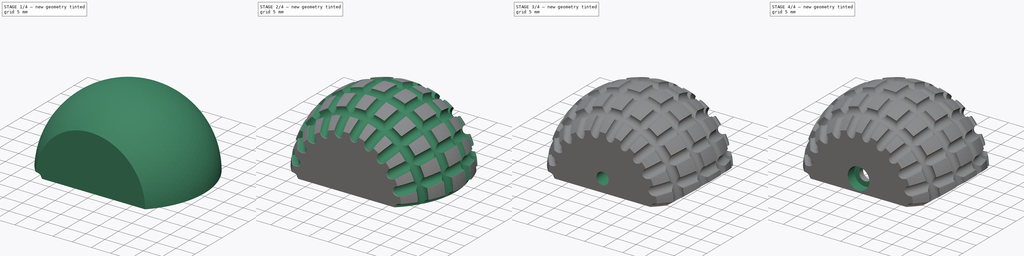
[diagram: build sequence overview — one tinted view per stage of 4, left to right]
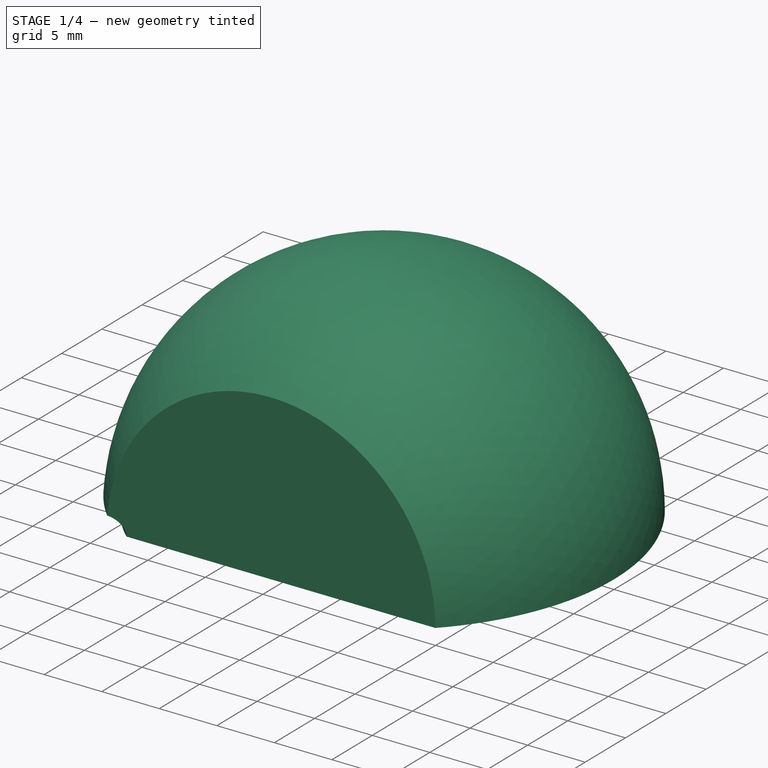
[diagram: stage 1 of 4 — iso view after this stage's code; geometry added in this stage tinted green]
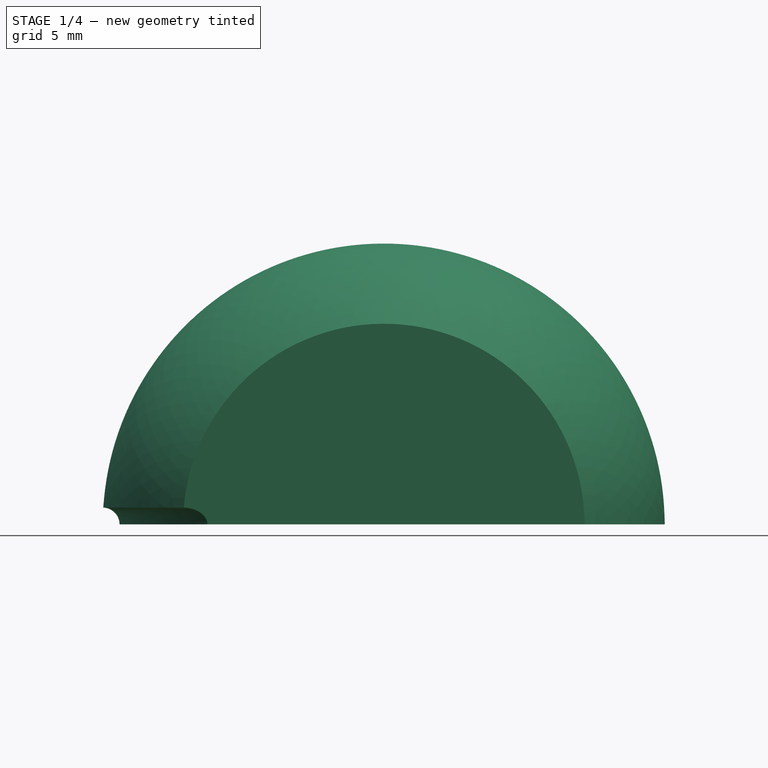
[diagram: stage 1 of 4 — front view after this stage's code; geometry added in this stage tinted green]
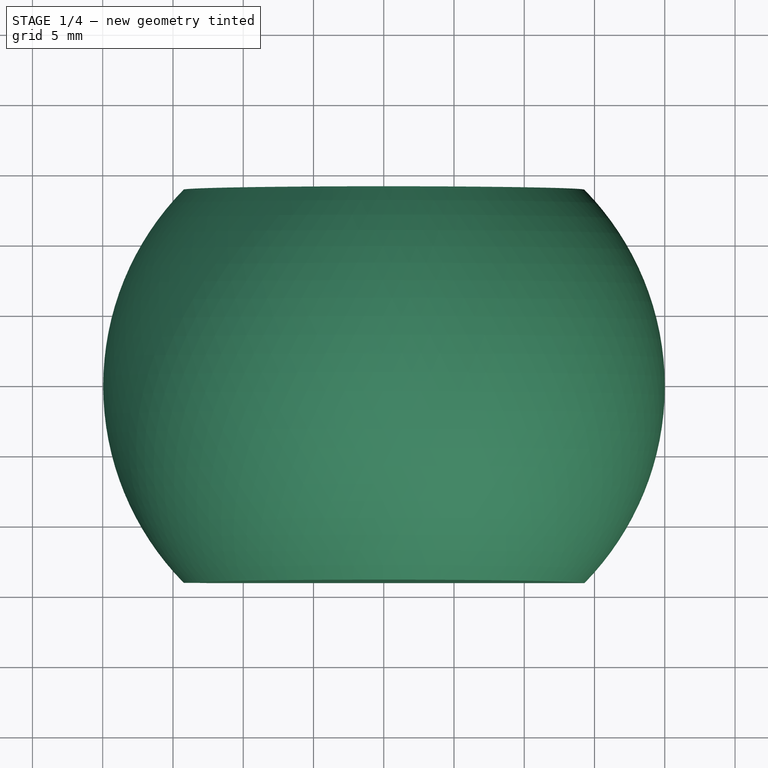
[diagram: stage 1 of 4 — top view after this stage's code; geometry added in this stage tinted green]
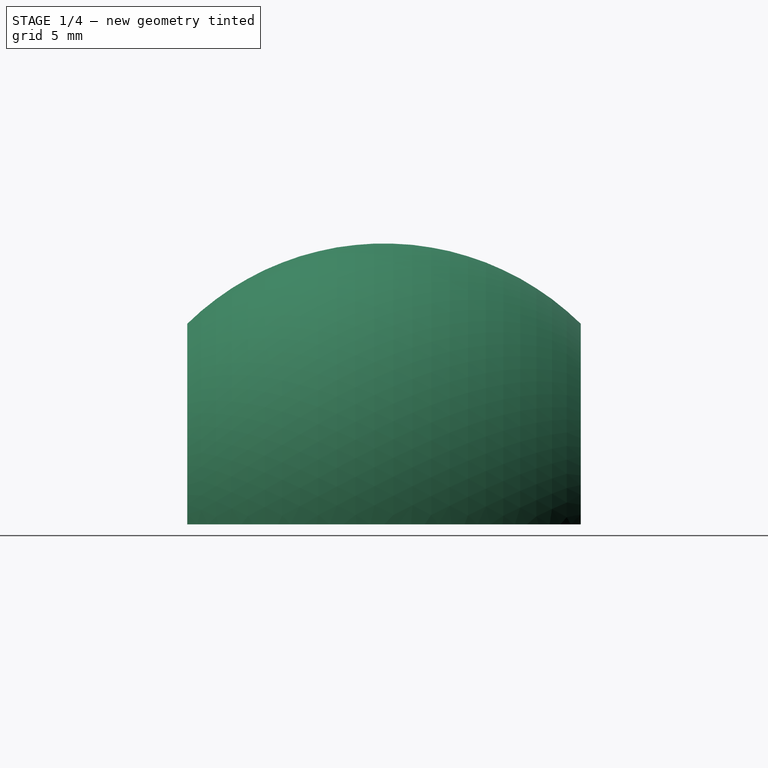
[diagram: stage 1 of 4 — right view after this stage's code; geometry added in this stage tinted green]
FCSTD DOCUMENT  (FreeCAD 1.0R38806 (Git))
Label: Foot_Tip
License: All rights reserved
LicenseURL: https://en.wikipedia.org/wiki/All_rights_reserved
objects: Sketcher::SketchObject×8, PartDesign::Pocket×4, PartDesign::Groove×3, PartDesign::Revolution×1, PartDesign::PolarPattern×1, PartDesign::Body×1
note: 43 computed .brp shape members not serialized (recipe doc carries the construction recipe); baked Part::Feature solids carry a one-line shape summary decoded from their .brp

FEATURE [Sketcher::SketchObject] Sketch  label="sk_base"
  ArcFitTolerance = 1e-06
  AttachmentSupport = -> [XY_Plane]
  FullyConstrained = true
  MakeInternals = false
  MapMode = 5
  sketch-geometry (4):
    g0: LineSegment StartX=0 StartY=-14 StartZ=0 EndX=0 EndY=14 EndZ=0
    g1: LineSegment StartX=0 StartY=14 StartZ=0 EndX=-14.2829 EndY=14 EndZ=0
    g2: ArcOfCircle CenterX=0 CenterY=0 CenterZ=0 NormalX=0 NormalY=0 NormalZ=1 AngleXU=0 Radius=20 StartAngle=2.3662 EndAngle=3.91699
    g3: LineSegment StartX=-14.2829 StartY=-14 StartZ=0 EndX=0 EndY=-14 EndZ=0
  constraints (11):
    c: PointOnObject(g0,g-2)
    c: Coincident(g0,g1)
    c: Horizontal(g1)
    c: Coincident(g3,g0)
    c: Coincident(g2,g-1)
    c: Coincident(g2,g3)
    c: Coincident(g2,g1)
    c: Horizontal(g3)
    c: Radius(g2) = 20  'rad_outer'
    c: Symmetric(g0,g0,g-1)
    c: DistanceY(g0,g0) = 28  'width'
FEATURE [PartDesign::Revolution] Revolution  label="revolution_base"
  Angle = 180
  Angle2 = 60
  Axis = (0,1,0)
  Base = (0,0,0)
  Profile = -> Sketch
  ReferenceAxis = -> Sketch [V_Axis]
  Refine = true
  Suppressed = false
  Type = 0
FEATURE [Sketcher::SketchObject] Sketch001  label="sk_transversal"
  ArcFitTolerance = 1e-06
  AttachmentSupport = -> [XZ_Plane]
  FullyConstrained = true
  MakeInternals = false
  MapMode = 5
  Placement = pos=(0,0,0) rot=(1,0,0;1.5708rad)
  expr: .Constraints.help_rad = <<sk_base>>.Constraints.rad_outer
  sketch-geometry (2):
    g0: Circle CenterX=-20 CenterY=0 CenterZ=0 NormalX=0 NormalY=0 NormalZ=1 AngleXU=0 Radius=1.2
    g1: Circle [constr] CenterX=0 CenterY=0 CenterZ=0 NormalX=0 NormalY=0 NormalZ=1 AngleXU=0 Radius=20
  constraints (5):
    c: PointOnObject(g0,g-1)
    c: Coincident(g1,g-1)
    c: Radius(g1) = 20  'help_rad'
    c: PointOnObject(g0,g1)
    c: Radius(g0) = 1.2  'rad_cutout'
FEATURE [PartDesign::Groove] Groove  label="groove_transversal"
  Angle = 120
  Angle2 = 60
  Axis = (0,2e-16,1)
  Base = (0,0,0)
  BaseFeature = -> Revolution
  Midplane = true
  Profile = -> Sketch001
  ReferenceAxis = -> Sketch001 [V_Axis]
  Refine = true
  Suppressed = false
  Type = 0
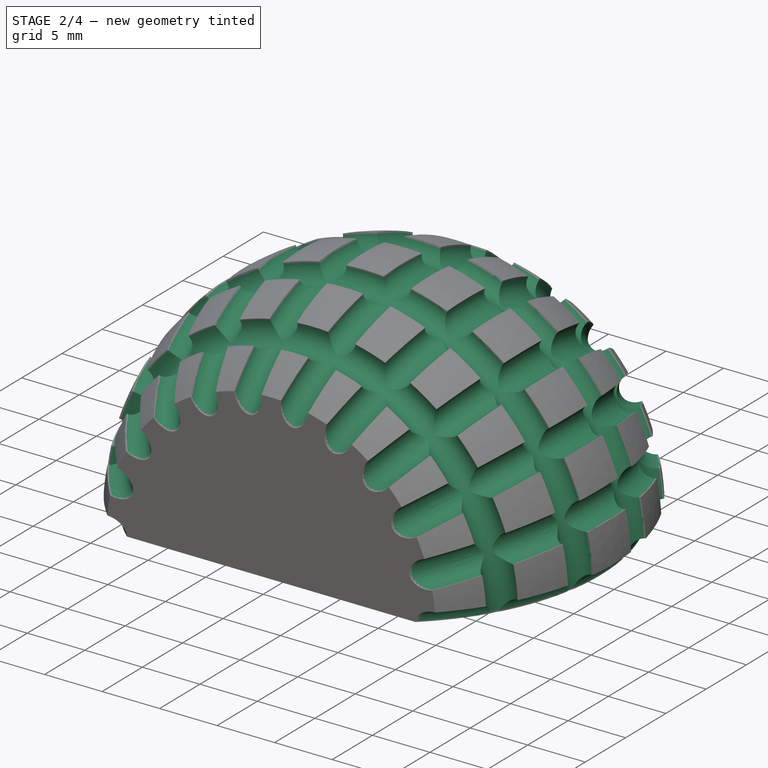
[diagram: stage 2 of 4 — iso view after this stage's code; geometry added in this stage tinted green]
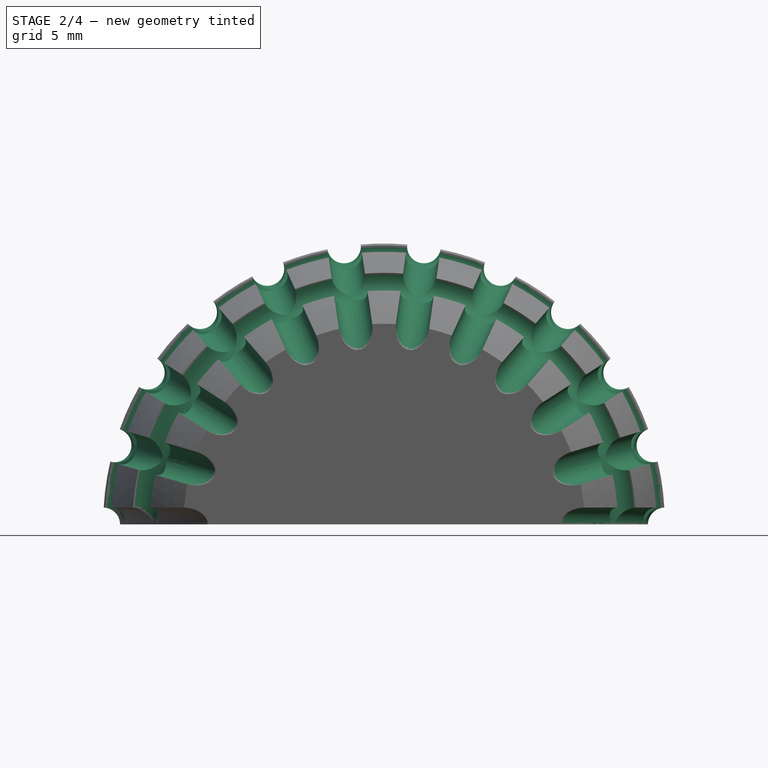
[diagram: stage 2 of 4 — front view after this stage's code; geometry added in this stage tinted green]
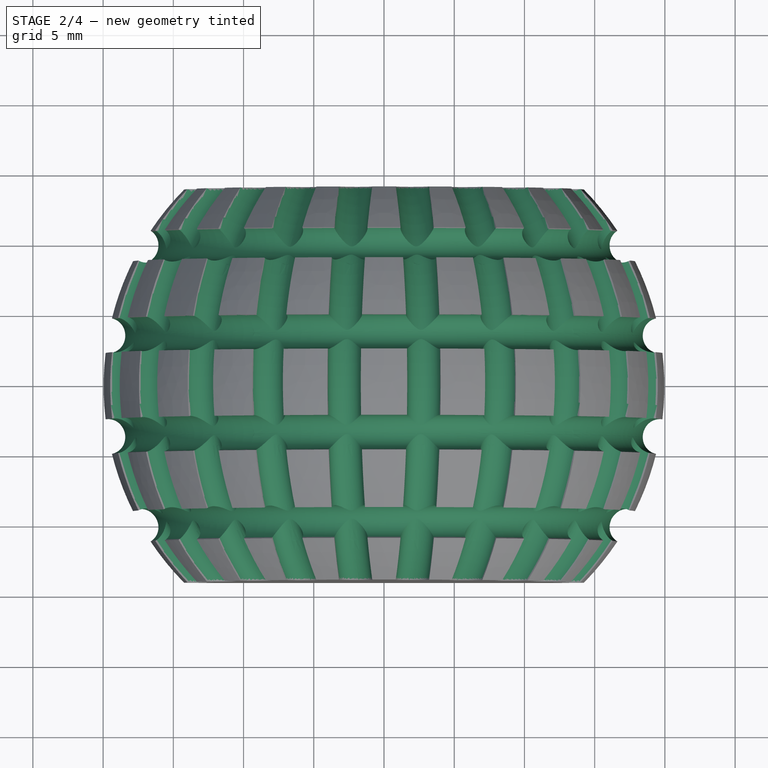
[diagram: stage 2 of 4 — top view after this stage's code; geometry added in this stage tinted green]
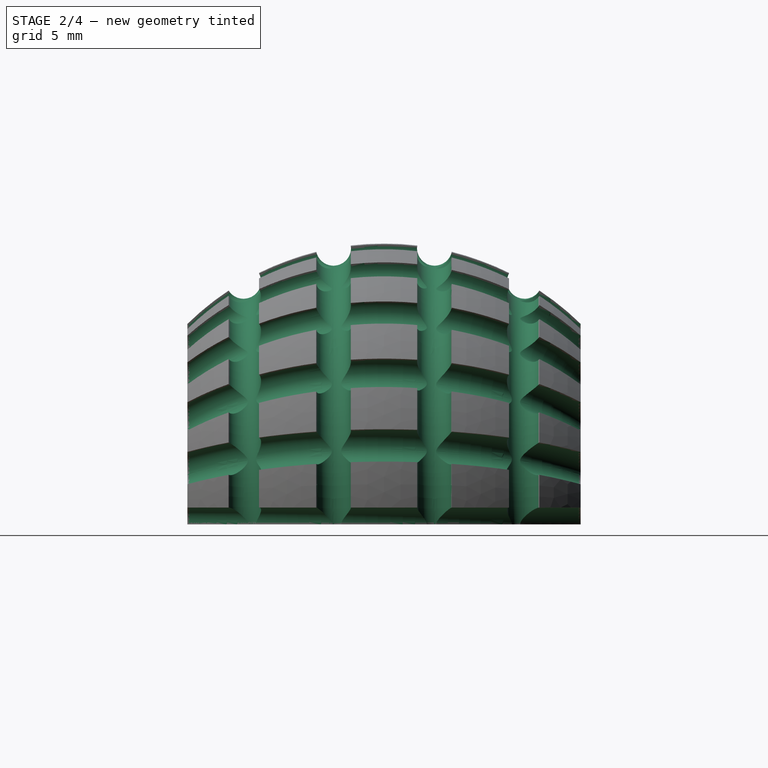
[diagram: stage 2 of 4 — right view after this stage's code; geometry added in this stage tinted green]
FEATURE [PartDesign::PolarPattern] PolarPattern  label="polar_transversal"
  Angle = 180
  Axis = -> Y_Axis
  BaseFeature = -> Groove
  Mode = 0
  Occurrences = 12
  Offset = 120
  Originals = -> [Groove]
  Refine = true
  Suppressed = false
  TransformMode = 0
FEATURE [Sketcher::SketchObject] Sketch002  label="sk_longitudinal"
  ArcFitTolerance = 1e-06
  AttachmentSupport = -> [XY_Plane]
  FullyConstrained = true
  MakeInternals = false
  MapMode = 5
  expr: .Constraints.help_rad = <<sk_base>>.Constraints.rad_outer
  sketch-geometry (5):
    g0: Circle [constr] CenterX=0 CenterY=0 CenterZ=0 NormalX=0 NormalY=0 NormalZ=1 AngleXU=0 Radius=20
    g1: Circle CenterX=-19.6733 CenterY=3.6 CenterZ=0 NormalX=0 NormalY=0 NormalZ=1 AngleXU=0 Radius=1.25
    g2: Circle CenterX=-19.6733 CenterY=-3.6 CenterZ=0 NormalX=0 NormalY=0 NormalZ=1 AngleXU=0 Radius=1.25
    g3: Circle CenterX=-17.3205 CenterY=10 CenterZ=0 NormalX=0 NormalY=0 NormalZ=1 AngleXU=0 Radius=1.25
    g4: Circle CenterX=-17.3205 CenterY=-10 CenterZ=0 NormalX=0 NormalY=0 NormalZ=1 AngleXU=0 Radius=1.25
  constraints (12):
    c: Coincident(g0,g-1)
    c: Radius(g0) = 20  'help_rad'
    c: Equal(g2,g1)
    c: Equal(g2,g4)
    c: Equal(g2,g3)
    c: Radius(g2) = 1.25  'rad_cutout'
    c: Distance(g1,g-1) = 3.6  'pos_inner'
    c: DistanceY(g-1,g3) = 10  'pos_outer'
    c: PointOnObject(g2,g0)
    c: PointOnObject(g4,g0)
    c: Symmetric(g2,g1,g-1)
    c: Symmetric(g4,g3,g-1)
FEATURE [PartDesign::Groove] Groove001  label="groove_longitudinal"
  Angle = 180
  Angle2 = 60
  Axis = (0,1,0)
  Base = (0,0,0)
  BaseFeature = -> PolarPattern
  Profile = -> Sketch002
  ReferenceAxis = -> Sketch002 [V_Axis]
  Refine = true
  Suppressed = false
  Type = 0
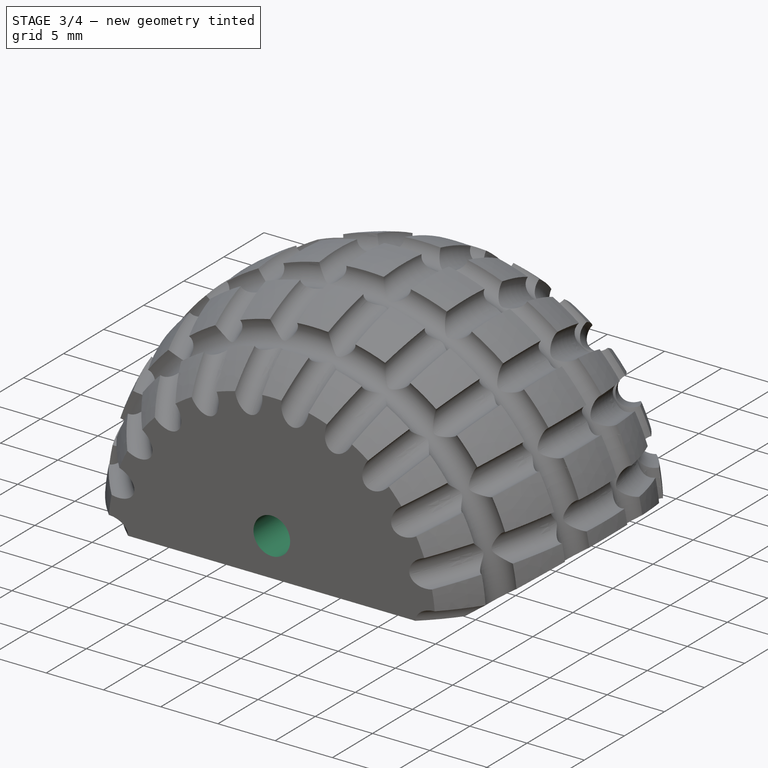
[diagram: stage 3 of 4 — iso view after this stage's code; geometry added in this stage tinted green]
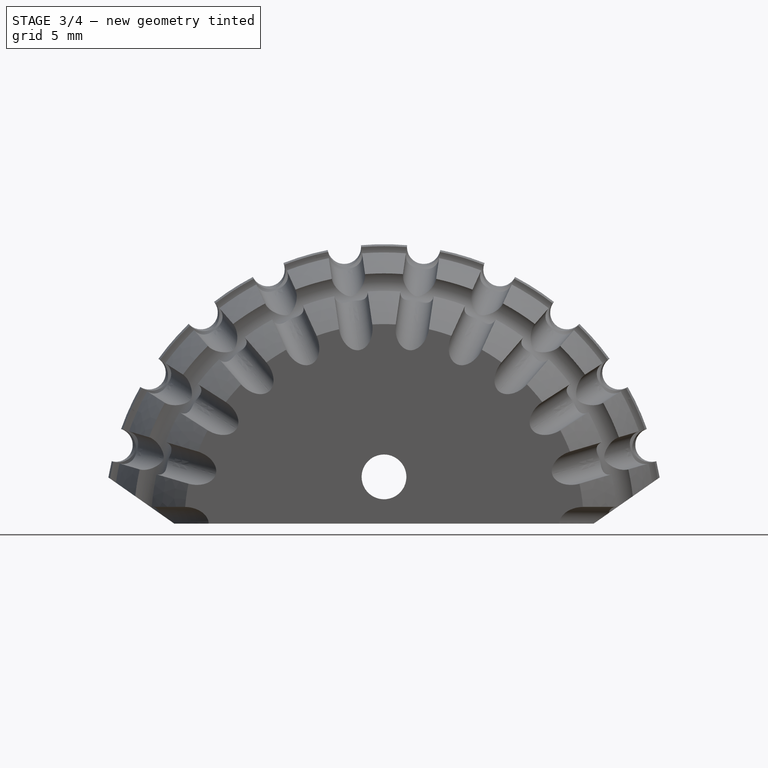
[diagram: stage 3 of 4 — front view after this stage's code; geometry added in this stage tinted green]
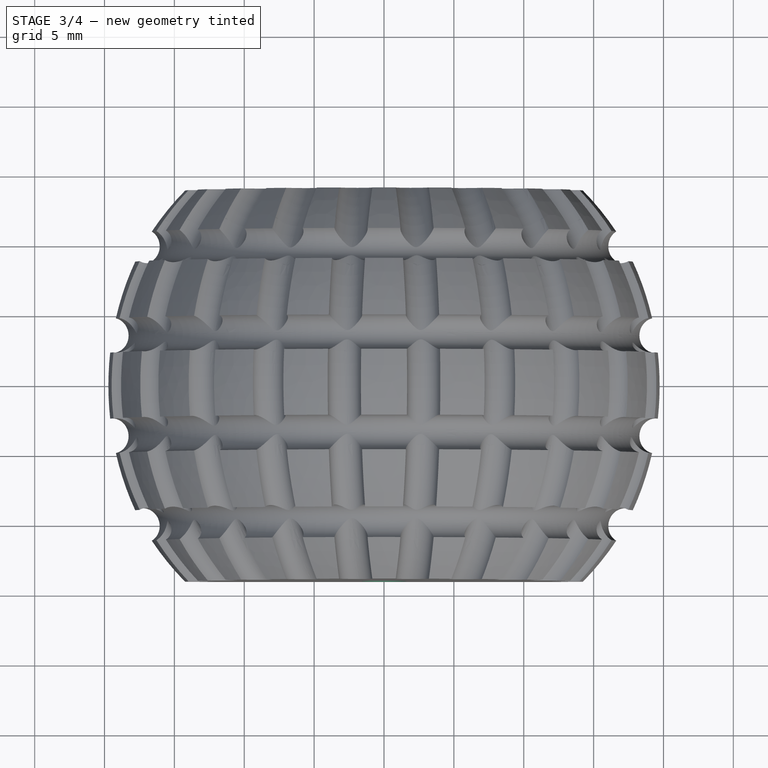
[diagram: stage 3 of 4 — top view after this stage's code; geometry added in this stage tinted green]
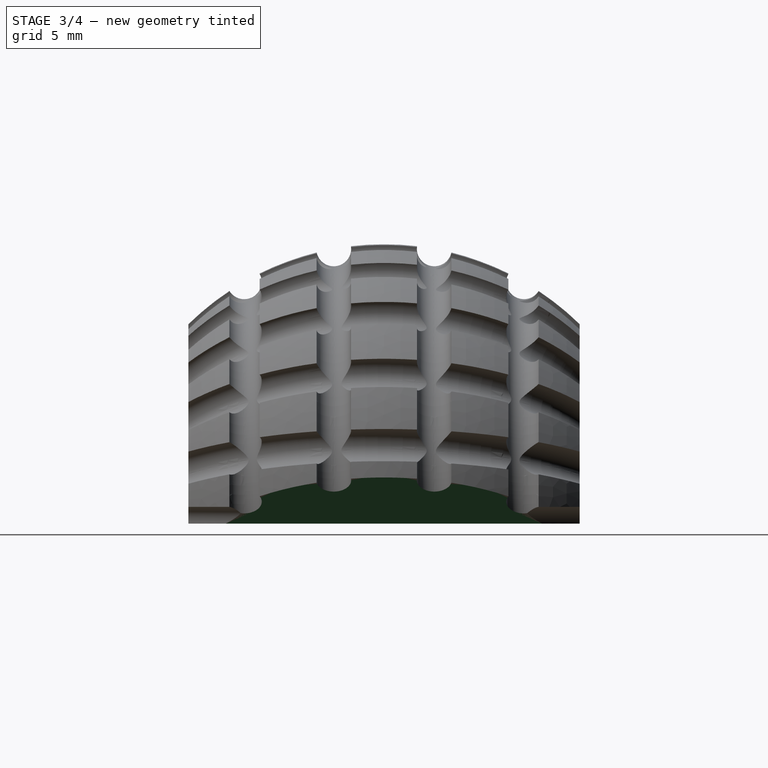
[diagram: stage 3 of 4 — right view after this stage's code; geometry added in this stage tinted green]
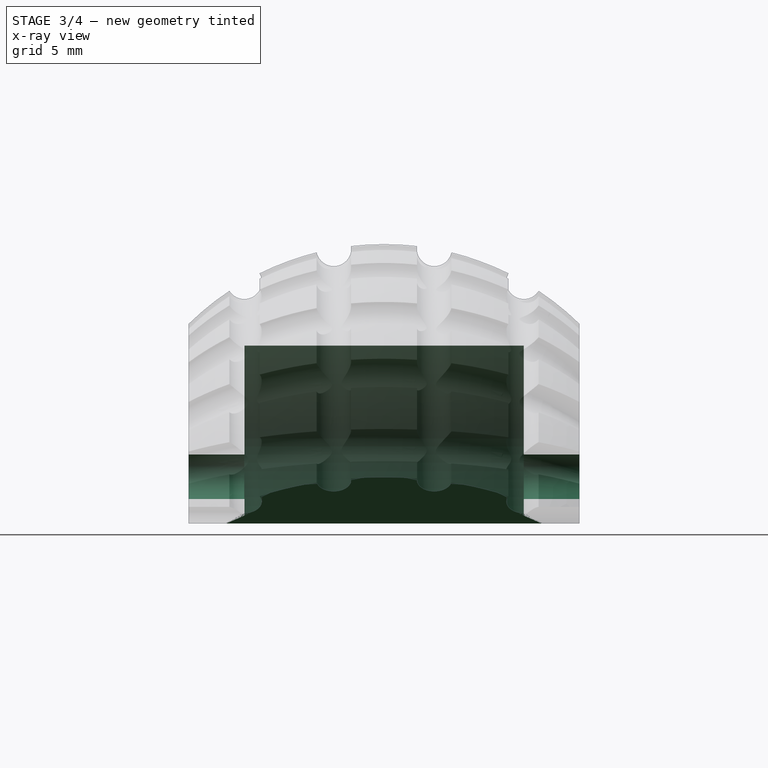
[diagram: stage 3 of 4 — x-ray composite at the right view; earlier geometry ghosted, this stage's added geometry solid]
FEATURE [Sketcher::SketchObject] Sketch003  label="sk_cutout"
  ArcFitTolerance = 1e-06
  AttachmentSupport = -> [XY_Plane]
  FullyConstrained = true
  MakeInternals = false
  MapMode = 5
  sketch-geometry (4):
    g0: LineSegment StartX=0 StartY=10 StartZ=0 EndX=-12.75 EndY=10 EndZ=0
    g1: LineSegment StartX=-12.75 StartY=10 StartZ=0 EndX=-12.75 EndY=-10 EndZ=0
    g2: LineSegment StartX=-12.75 StartY=-10 StartZ=0 EndX=0 EndY=-10 EndZ=0
    g3: LineSegment StartX=0 StartY=-10 StartZ=0 EndX=0 EndY=10 EndZ=0
  constraints (11):
    c: Coincident(g0,g1)
    c: Coincident(g1,g2)
    c: Coincident(g2,g3)
    c: Coincident(g3,g0)
    c: Horizontal(g0)
    c: Horizontal(g2)
    c: Vertical(g1)
    c: PointOnObject(g0,g-2)
    c: Symmetric(g0,g2,g-1)
    c: DistanceY(g3,g3) = 20  'width'
    c: DistanceX(g2,g2) = 12.75  'rad'
FEATURE [PartDesign::Groove] Groove002  label="groove_cutout"
  Angle = 180
  Angle2 = 60
  Axis = (0,1,0)
  Base = (0,0,0)
  BaseFeature = -> Groove001
  Profile = -> Sketch003
  ReferenceAxis = -> Sketch003 [V_Axis]
  Refine = true
  Suppressed = false
  Type = 0
FEATURE [Sketcher::SketchObject] Sketch004  label="sk_slanted-edge"
  ArcFitTolerance = 1e-06
  AttachmentSupport = -> [XZ_Plane]
  FullyConstrained = true
  MakeInternals = false
  MapMode = 5
  Placement = pos=(0,0,0) rot=(1,0,0;1.5708rad)
  sketch-geometry (6):
    g0: LineSegment StartX=-21 StartY=0 StartZ=0 EndX=-21 EndY=4.20125 EndZ=0
    g1: LineSegment StartX=-21 StartY=4.20125 StartZ=0 EndX=-15 EndY=0 EndZ=0
    g2: LineSegment StartX=-15 StartY=0 StartZ=0 EndX=-21 EndY=0 EndZ=0
    g3: LineSegment StartX=15 StartY=0 StartZ=0 EndX=21 EndY=4.20125 EndZ=0
    g4: LineSegment StartX=21 StartY=4.20125 StartZ=0 EndX=21 EndY=0 EndZ=0
    g5: LineSegment StartX=21 StartY=0 StartZ=0 EndX=15 EndY=0 EndZ=0
  constraints (16):
    c: PointOnObject(g0,g-1)
    c: Vertical(g0)
    c: Coincident(g0,g1)
    c: PointOnObject(g1,g-1)
    c: Coincident(g1,g2)
    c: Coincident(g2,g0)
    c: Coincident(g3,g4)
    c: Vertical(g4)
    c: Coincident(g4,g5)
    c: Coincident(g5,g3)
    c: Symmetric(g3,g1,g-2)
    c: Distance(g1,g-2) = 15  'rad'
    c: Angle(g1,g2) = 0.610865  'angle'
    c: DistanceX(g2,g2) = 6  'width'
    c: Symmetric(g3,g0,g-2)
    c: PointOnObject(g4,g-1)
FEATURE [PartDesign::Pocket] Pocket  label="pocket_slanted-edge"
  BaseFeature = -> Groove002
  Direction = (0,1,-2e-16)
  Length = 5
  Length2 = 5
  Midplane = true
  Profile = -> Sketch004
  ReferenceAxis = -> Sketch004 [N_Axis]
  Refine = true
  Suppressed = false
  Type = 1
FEATURE [Sketcher::SketchObject] Sketch005  label="sk_screwhole"
  ArcFitTolerance = 1e-06
  AttachmentSupport = -> [XZ_Plane]
  FullyConstrained = true
  MakeInternals = false
  MapMode = 5
  Placement = pos=(0,0,0) rot=(1,0,0;1.5708rad)
  sketch-geometry (8):
    g0: LineSegment [constr] StartX=2.9 StartY=5.02295 StartZ=0 EndX=0 EndY=6.69726 EndZ=0
    g1: LineSegment [constr] StartX=0 StartY=6.69726 StartZ=0 EndX=-2.9 EndY=5.02295 EndZ=0
    g2: LineSegment [constr] StartX=-2.9 StartY=5.02295 StartZ=0 EndX=-2.9 EndY=1.67432 EndZ=0
    g3: LineSegment [constr] StartX=-2.9 StartY=1.67432 StartZ=0 EndX=0 EndY=0 EndZ=0
    g4: LineSegment [constr] StartX=0 StartY=0 StartZ=0 EndX=2.9 EndY=1.67432 EndZ=0
    g5: LineSegment [constr] StartX=2.9 StartY=1.67432 StartZ=0 EndX=2.9 EndY=5.02295 EndZ=0
    g6: Circle [constr] CenterX=0 CenterY=3.34863 CenterZ=0 NormalX=0 NormalY=0 NormalZ=1 AngleXU=0 Radius=3.34863
    g7: Circle CenterX=0 CenterY=3.34863 CenterZ=0 NormalX=0 NormalY=0 NormalZ=1 AngleXU=0 Radius=1.6
  constraints (18):
    c: Coincident(g0,g1)
    c: Coincident(g1,g2)
    c: Coincident(g2,g3)
    c: Coincident(g3,g4)
    c: Coincident(g4,g5)
    c: Coincident(g5,g0)
    c: Equal(g0, g1-g5) x5
    c: PointOnObject(g0,g6)
    c: PointOnObject(g1,g6)
    c: PointOnObject(g2,g6)
    c: PointOnObject(g3,g6)
    c: PointOnObject(g4,g6)
    c: PointOnObject(g5,g6)
    c: PointOnObject(g6,g-2)
    c: Coincident(g3,g-1)
    c: Distance(g1,g0) = 5.8  'm2_width'
    c: Coincident(g7,g6)
    c: Radius(g7) = 1.6  'rad'
FEATURE [PartDesign::Pocket] Pocket001  label="pocket_screwhole"
  BaseFeature = -> Pocket
  Direction = (0,1,-2e-16)
  Length = 5
  Length2 = 5
  Midplane = true
  Profile = -> Sketch005
  ReferenceAxis = -> Sketch005 [N_Axis]
  Refine = true
  Suppressed = false
  Type = 1
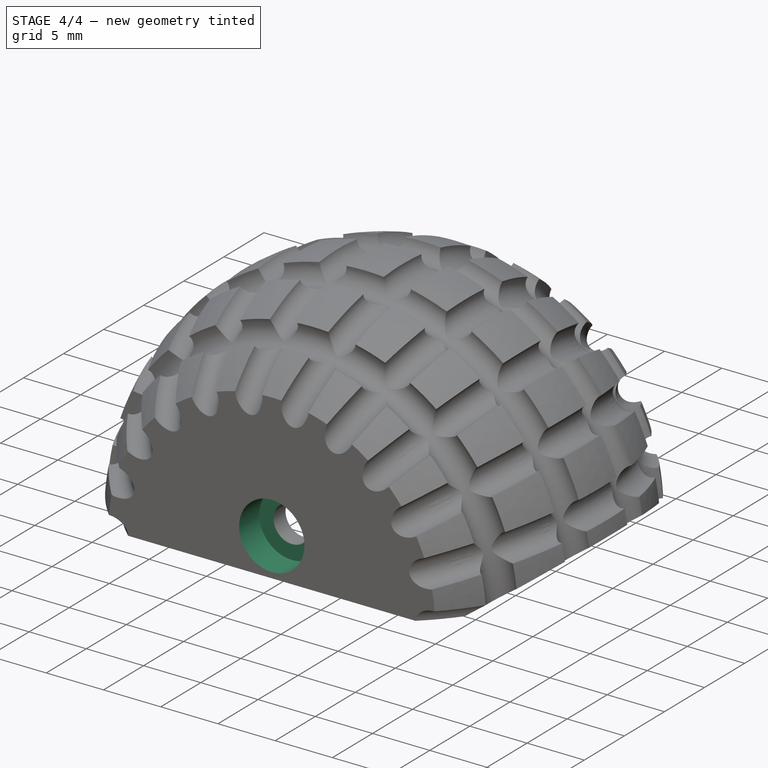
[diagram: stage 4 of 4 — iso view after this stage's code; geometry added in this stage tinted green]
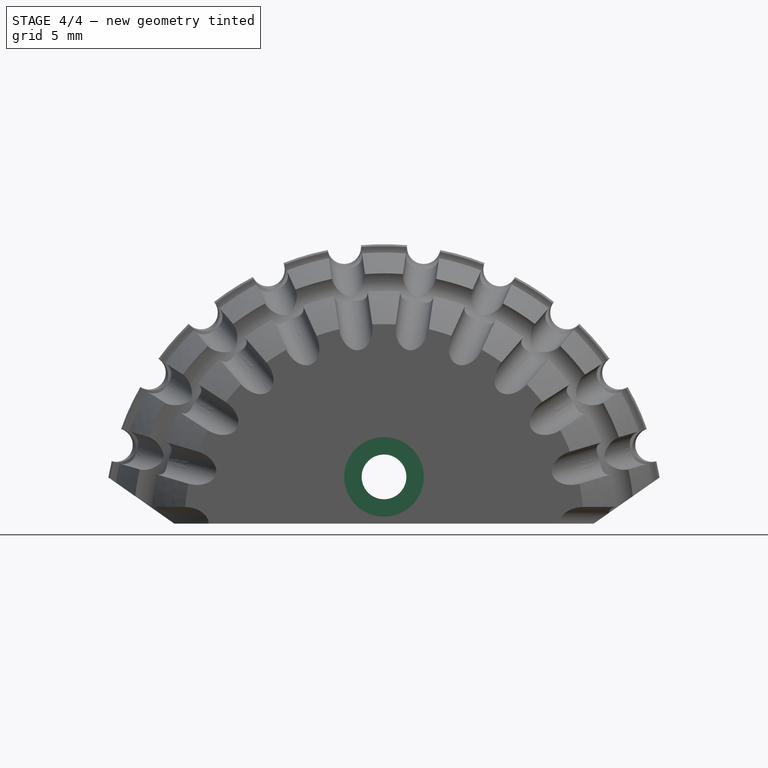
[diagram: stage 4 of 4 — front view after this stage's code; geometry added in this stage tinted green]
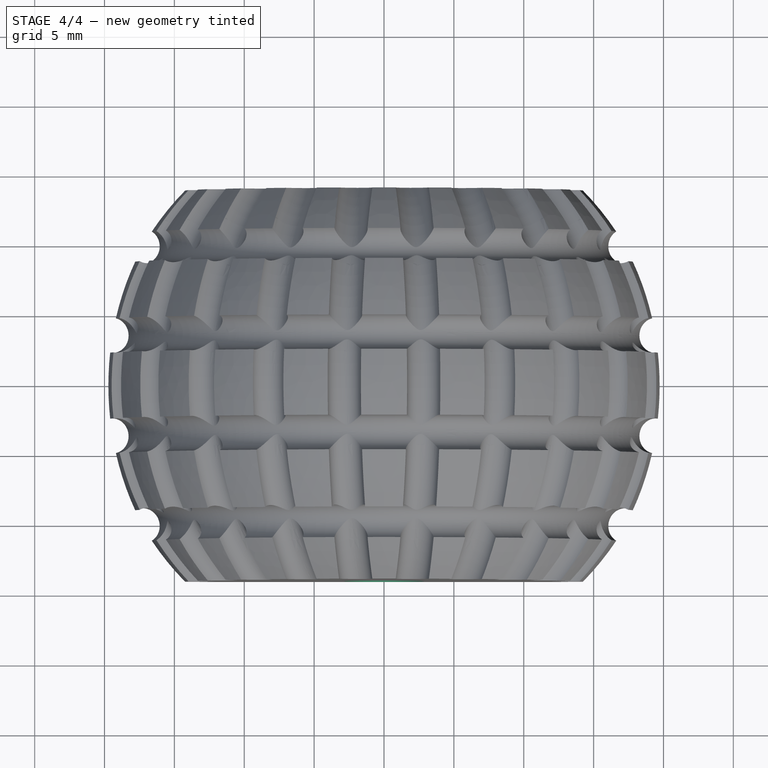
[diagram: stage 4 of 4 — top view after this stage's code; geometry added in this stage tinted green]
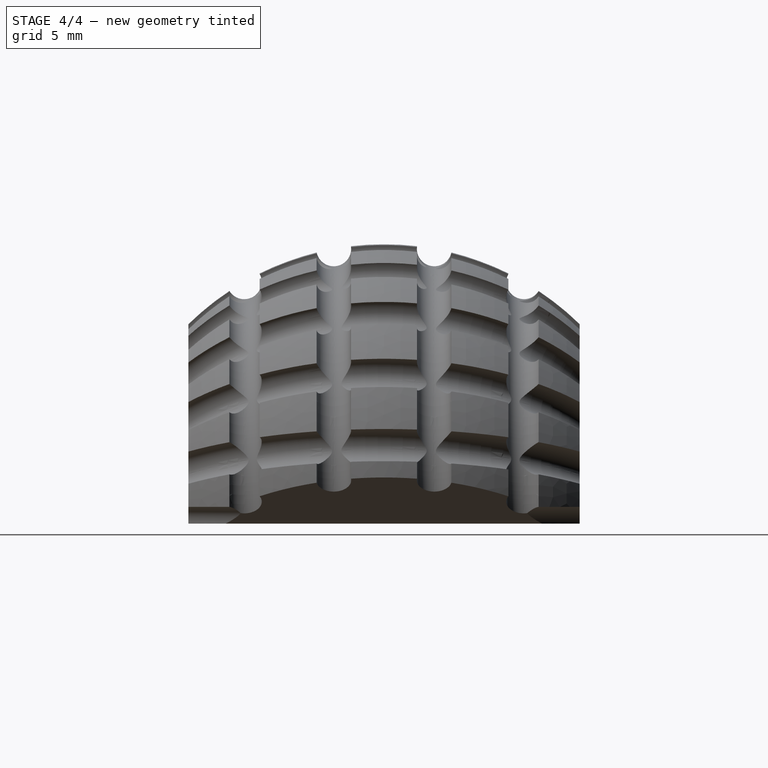
[diagram: stage 4 of 4 — right view after this stage's code; geometry added in this stage tinted green]
FEATURE [Sketcher::SketchObject] Sketch006  label="sk_screwhead-front"
  ArcFitTolerance = 1e-06
  AttachmentOffset = pos=(0,0,14) rot=(0,0,1;0rad)
  AttachmentSupport = -> [XZ_Plane]
  ExternalGeometry = -> [Sketch005]
  FullyConstrained = true
  MakeInternals = false
  MapMode = 5
  Placement = pos=(0,-14,3.1e-15) rot=(1,0,0;1.5708rad)
  expr: .AttachmentOffset.Base.z = <<sk_base>>.Constraints.width / 2
  sketch-geometry (1):
    g0: Circle CenterX=0 CenterY=3.34863 CenterZ=0 NormalX=0 NormalY=0 NormalZ=1 AngleXU=0 Radius=2.85
  constraints (2):
    c: Coincident(g0,g-3)
    c: Radius(g0) = 2.85  'rad'
FEATURE [Sketcher::SketchObject] Sketch007  label="sk_screwhead-back"
  ArcFitTolerance = 1e-06
  AttachmentOffset = pos=(0,0,-14) rot=(0,0,1;0rad)
  AttachmentSupport = -> [XZ_Plane]
  ExternalGeometry = -> [Sketch005]
  FullyConstrained = true
  MakeInternals = false
  MapMode = 5
  Placement = pos=(0,14,-3.1e-15) rot=(1,0,0;1.5708rad)
  expr: .AttachmentOffset.Base.z = -<<sk_base>>.Constraints.width / 2
  sketch-geometry (1):
    g0: Circle CenterX=0 CenterY=3.34863 CenterZ=0 NormalX=0 NormalY=0 NormalZ=1 AngleXU=0 Radius=2.85
  constraints (2):
    c: Coincident(g0,g-3)
    c: Radius(g0) = 2.85  'rad'
FEATURE [PartDesign::Pocket] Pocket002  label="pocket_screwhead-front"
  BaseFeature = -> Pocket001
  Direction = (0,1,-2e-16)
  Length = 2.5
  Length2 = 5
  Profile = -> Sketch006
  ReferenceAxis = -> Sketch006 [N_Axis]
  Refine = true
  Suppressed = false
  Type = 0
FEATURE [PartDesign::Pocket] Pocket003  label="pocket_screwhead-back"
  BaseFeature = -> Pocket002
  Direction = (0,1,-2e-16)
  Length = 2.5
  Length2 = 5
  Profile = -> Sketch007
  ReferenceAxis = -> Sketch007 [N_Axis]
  Refine = true
  Reversed = true
  Suppressed = false
  Type = 0
  expr: Length = <<pocket_screwhead-front>>.Length
FEATURE [PartDesign::Body] Body  label="Foot_Tip"
  AllowCompound = false
  Group = -> [Sketch,Revolution,Sketch001,Groove,PolarPattern,Sketch002,Groove001,Sketch003,Groove002,Sketch004,Pocket,Sketch005,Pocket001,Sketch006,Sketch007,Pocket002,Pocket003]
  Origin = -> Origin
  Tip = -> Pocket003
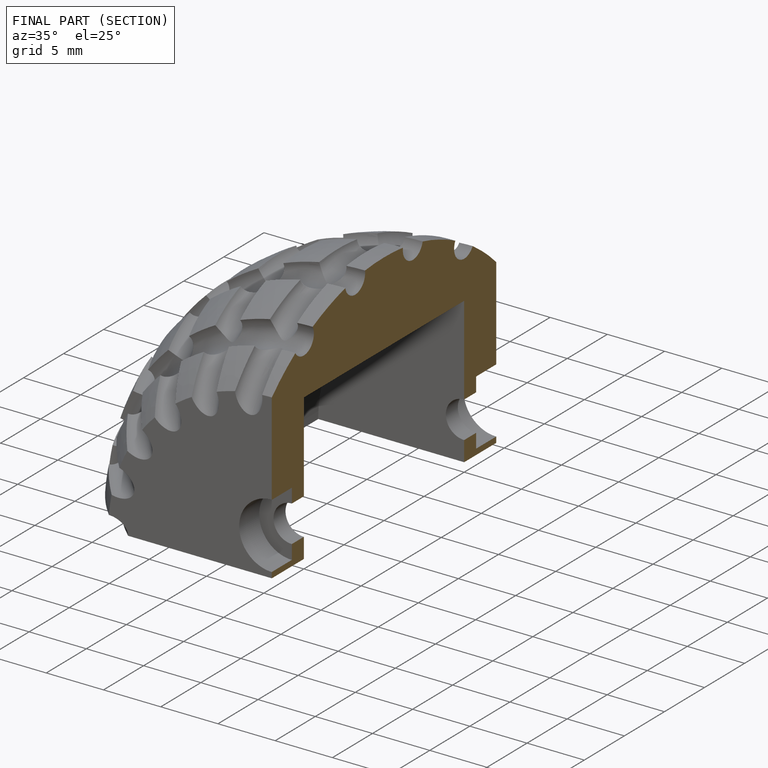
[diagram: finished part — half-section view (interior)]
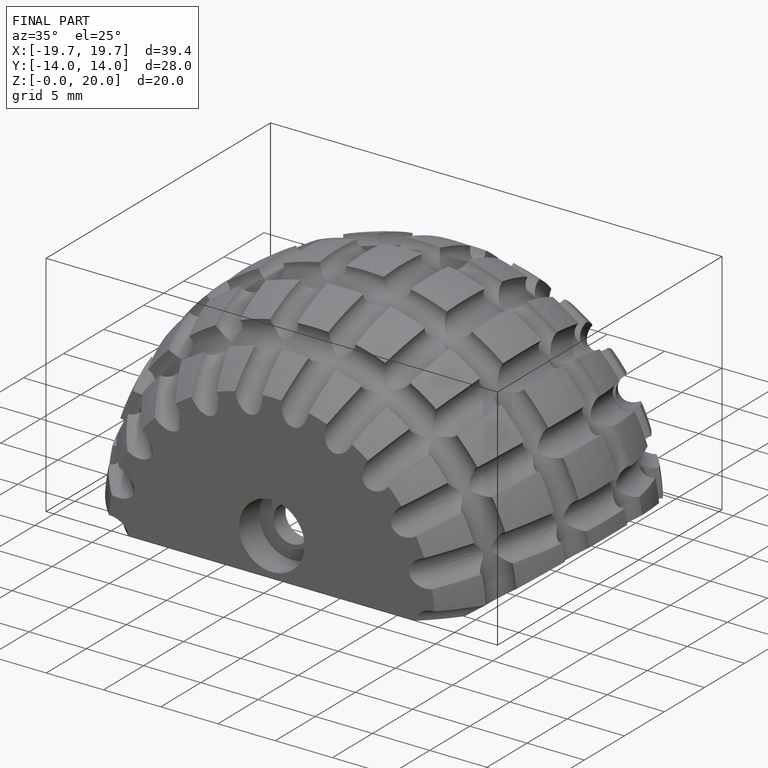
[diagram: finished part — iso view with bounding-box wireframe]
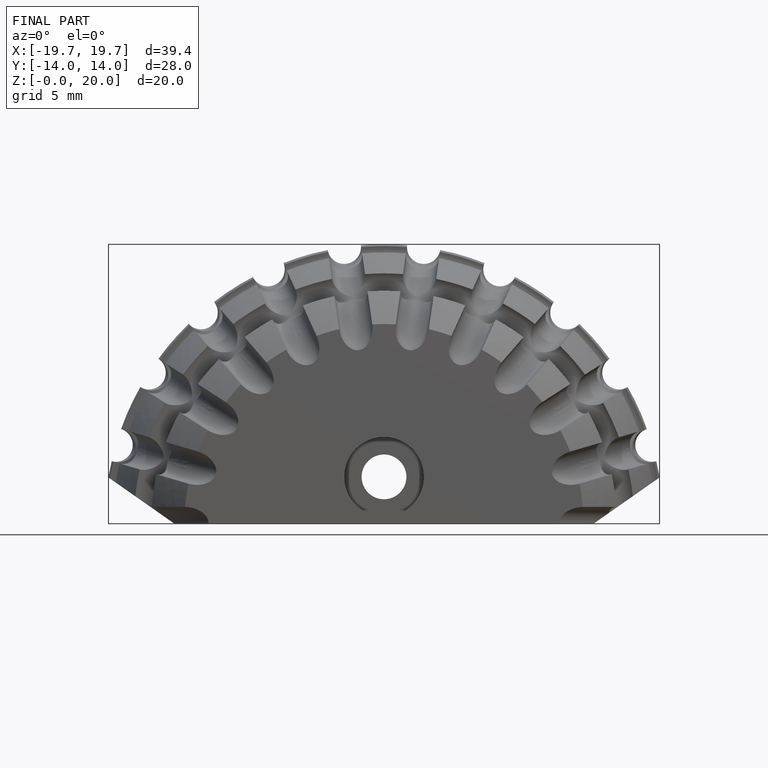
[diagram: finished part — front view with bounding-box wireframe]
